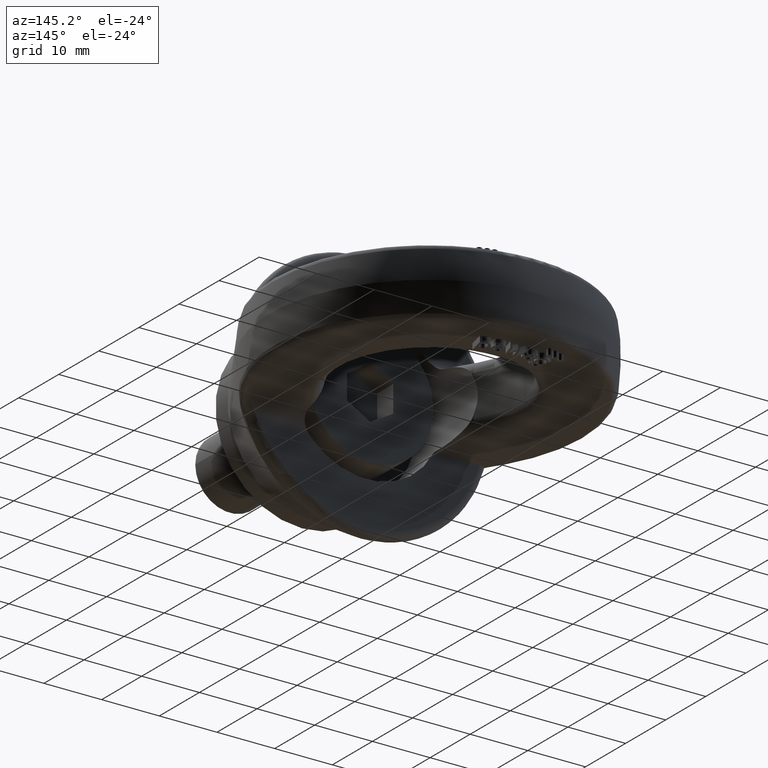
[diagram: clean part render]
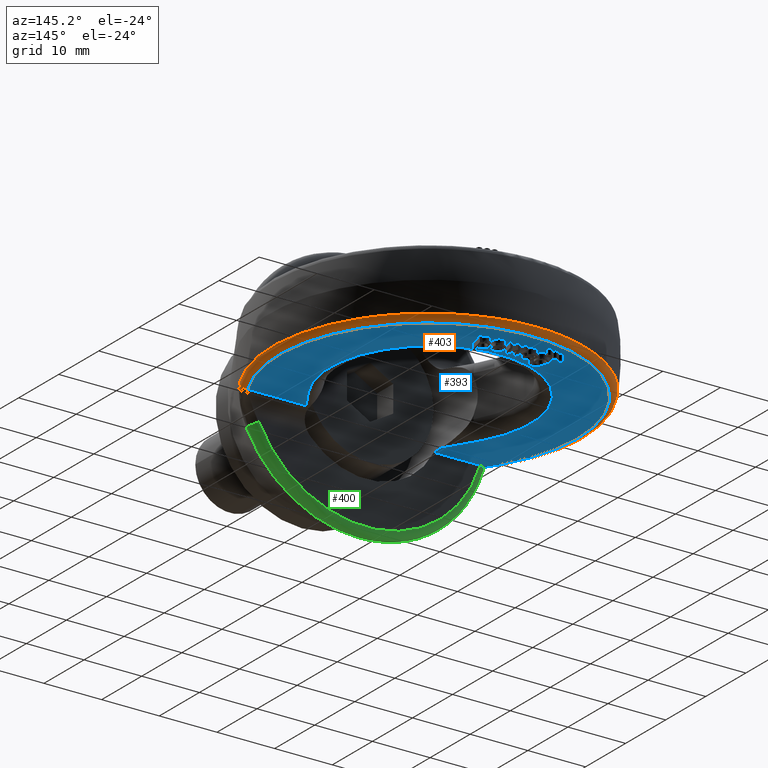
[diagram: same view with three faces highlighted in distinct colors, each labeled with its STEP entity id]
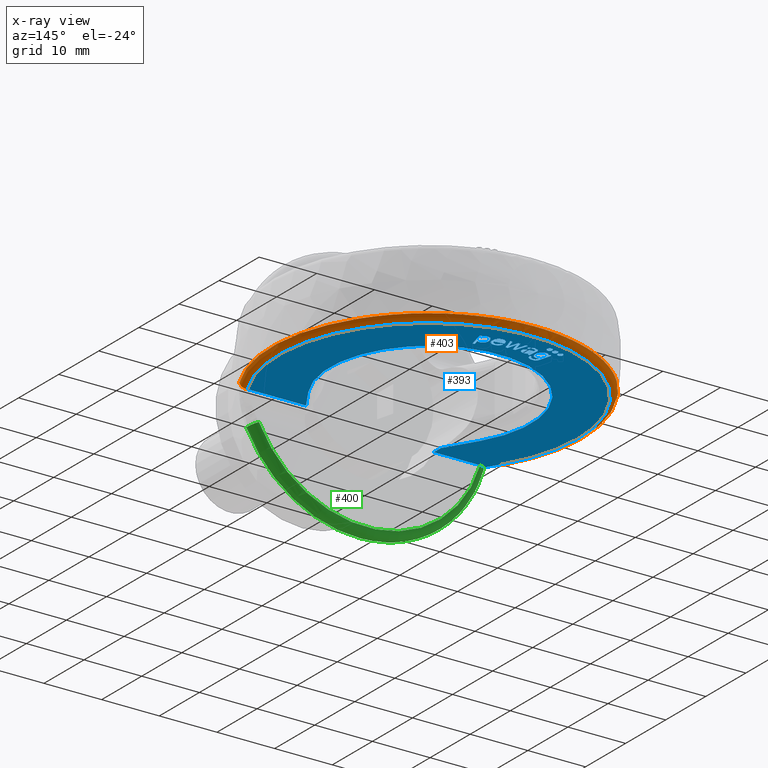
[diagram: x-ray of the same camera — body ghosted, the three highlighted faces saturated]
A machine part, auxiliary view with three faces highlighted in distinct colors.
The next image is the same camera in x-ray (body ghosted, the three faces saturated) — at least one of them is partly hidden behind the body in this view.
Their STEP definitions:

[orange] entity #403 — the highlighted toroidal blend (fillet) surface has major radius 25.8583 mm and minor (blend) radius 1.2 mm.
#110=TOROIDAL_SURFACE('',#3317,25.8582675367086,1.2);
#222=FACE_OUTER_BOUND('',#820,.T.);
#403=ADVANCED_FACE('',(#222),#110,.T.);
#583=CIRCLE('',#3212,27.0381124433265);
#607=CIRCLE('',#3302,25.8582675367086);
#610=CIRCLE('',#3314,1.2);
#612=CIRCLE('',#3316,1.2);
#820=EDGE_LOOP('',(#1910,#1911,#1912,#1913));
#1910=ORIENTED_EDGE('',*,*,#2823,.F.);
#1911=ORIENTED_EDGE('',*,*,#2584,.F.);
#1912=ORIENTED_EDGE('',*,*,#2825,.F.);
#1913=ORIENTED_EDGE('',*,*,#2795,.F.);
#2279=VERTEX_POINT('',#4270);
#2288=VERTEX_POINT('',#4315);
#2425=VERTEX_POINT('',#5593);
#2426=VERTEX_POINT('',#5595);
#2584=EDGE_CURVE('',#2288,#2279,#583,.T.);
#2795=EDGE_CURVE('',#2425,#2426,#607,.T.);
#2823=EDGE_CURVE('',#2279,#2425,#610,.T.);
#2825=EDGE_CURVE('',#2426,#2288,#612,.T.);
#3212=AXIS2_PLACEMENT_3D('',#4316,#3436,#3437);
#3302=AXIS2_PLACEMENT_3D('',#5594,#3739,#3740);
#3314=AXIS2_PLACEMENT_3D('',#5751,#3776,#3777);
#3316=AXIS2_PLACEMENT_3D('',#5783,#3780,#3781);
#3317=AXIS2_PLACEMENT_3D('',#5784,#3782,#3783);
#3436=DIRECTION('',(-2.34291072916505E-15,-1.14557210677714E-16,1.));
#3437=DIRECTION('',(-2.84920768552035E-31,1.,1.28316906708106E-16));
#3739=DIRECTION('',(2.34291072916505E-15,1.14557210677714E-16,-1.));
#3740=DIRECTION('',(-2.38336764568243E-31,1.,1.00628752884209E-16));
#3776=DIRECTION('',(0.521954634038309,-0.852973246946195,1.22289311222577E-15));
#3777=DIRECTION('',(0.852973246946194,0.521954634038309,2.16840434497101E-15));
#3780=DIRECTION('',(-0.483404388258223,-0.875397165526993,-1.13257332777566E-15));
#3781=DIRECTION('',(-0.875397165526993,0.483404388258223,-2.16840434497101E-15));
#3782=DIRECTION('',(-2.34291072916505E-15,-1.14557210677714E-16,1.));
#3783=DIRECTION('',(-2.84708537495894E-31,1.,1.28221326337571E-16));
#4270=CARTESIAN_POINT('',(-23.0627865620805,17.3873319145569,-5.01901140684417));
#4315=CARTESIAN_POINT('',(23.6690869940882,18.4296577946768,-5.01901140684406));
#4316=CARTESIAN_POINT('',(1.17590956748968E-14,31.5,-5.01901140684411));
#5593=CARTESIAN_POINT('',(-22.0564104211897,18.0031574310126,-6.00000000000006));
#5594=CARTESIAN_POINT('',(1.40574643749903E-14,31.5,-6.));
#5595=CARTESIAN_POINT('',(22.6362541070735,19.,-5.99999999999995));
#5751=CARTESIAN_POINT('',(-22.0564104211897,18.0031574310126,-4.80000000000006));
#5783=CARTESIAN_POINT('',(22.6362541070735,19.,-4.79999999999995));
#5784=CARTESIAN_POINT('',(1.12459714999922E-14,31.5,-4.80000000000001));

[blue] entity #393 — the highlighted planar face has unit normal (-0, -0, 1).
#393=ADVANCED_FACE('',(#658,#659,#660,#661,#662,#663,#664,#665,#666),#527,
 .F.);
#527=PLANE('',#3303);
#603=CIRCLE('',#3298,0.45);
#604=CIRCLE('',#3299,0.45);
#605=CIRCLE('',#3300,0.45);
#606=CIRCLE('',#3301,17.4);
#607=CIRCLE('',#3302,25.8582675367086);
#658=FACE_BOUND('',#802,.T.);
#659=FACE_BOUND('',#803,.T.);
#660=FACE_BOUND('',#804,.T.);
#661=FACE_BOUND('',#805,.T.);
#662=FACE_BOUND('',#806,.T.);
#663=FACE_BOUND('',#807,.T.);
#664=FACE_BOUND('',#808,.T.);
#665=FACE_BOUND('',#809,.T.);
#666=FACE_BOUND('',#810,.T.);
#802=EDGE_LOOP('',(#1819,#1820,#1821,#1822,#1823,#1824,#1825));
#803=EDGE_LOOP('',(#1826,#1827,#1828,#1829,#1830,#1831,#1832,#1833,#1834,
#1835,#1836,#1837,#1838,#1839,#1840));
#804=EDGE_LOOP('',(#1841,#1842,#1843,#1844,#1845));
#805=EDGE_LOOP('',(#1846));
#806=EDGE_LOOP('',(#1847));
#807=EDGE_LOOP('',(#1848));
#808=EDGE_LOOP('',(#1849,#1850,#1851,#1852,#1853,#1854,#1855,#1856,#1857));
#809=EDGE_LOOP('',(#1858,#1859,#1860,#1861,#1862,#1863));
#810=EDGE_LOOP('',(#1864,#1865,#1866,#1867,#1868,#1869,#1870,#1871,#1872));
#936=LINE('',#4390,#1130);
#1009=LINE('',#5441,#1231);
#1010=LINE('',#5473,#1232);
#1011=LINE('',#5475,#1233);
#1012=LINE('',#5476,#1234);
#1013=LINE('',#5479,#1235);
#1014=LINE('',#5481,#1236);
#1015=LINE('',#5483,#1237);
#1016=LINE('',#5497,#1238);
#1017=LINE('',#5499,#1239);
#1018=LINE('',#5515,#1240);
#1019=LINE('',#5517,#1241);
#1020=LINE('',#5519,#1242);
#1021=LINE('',#5521,#1243);
#1022=LINE('',#5523,#1244);
#1023=LINE('',#5539,#1245);
#1024=LINE('',#5562,#1246);
#1025=LINE('',#5572,#1247);
#1026=LINE('',#5573,#1248);
#1027=LINE('',#5596,#1249);
#1028=LINE('',#5598,#1250);
#1029=LINE('',#5599,#1251);
#1030=LINE('',#5602,#1252);
#1031=LINE('',#5604,#1253);
#1032=LINE('',#5606,#1254);
#1033=LINE('',#5608,#1255);
#1034=LINE('',#5632,#1256);
#1035=LINE('',#5677,#1257);
#1130=VECTOR('',#3472,1.);
#1231=VECTOR('',#3713,1.);
#1232=VECTOR('',#3714,1.);
#1233=VECTOR('',#3715,1.);
#1234=VECTOR('',#3716,1.);
#1235=VECTOR('',#3717,1.);
#1236=VECTOR('',#3718,1.);
#1237=VECTOR('',#3719,1.);
#1238=VECTOR('',#3720,1.);
#1239=VECTOR('',#3721,1.);
#1240=VECTOR('',#3722,1.);
#1241=VECTOR('',#3723,1.);
#1242=VECTOR('',#3724,1.);
#1243=VECTOR('',#3725,1.);
#1244=VECTOR('',#3726,1.);
#1245=VECTOR('',#3727,1.);
#1246=VECTOR('',#3728,1.);
#1247=VECTOR('',#3737,1.);
#1248=VECTOR('',#3738,1.);
#1249=VECTOR('',#3741,1.);
#1250=VECTOR('',#3742,1.);
#1251=VECTOR('',#3743,1.);
#1252=VECTOR('',#3744,1.);
#1253=VECTOR('',#3745,1.);
#1254=VECTOR('',#3746,1.);
#1255=VECTOR('',#3747,1.);
#1256=VECTOR('',#3748,1.);
#1257=VECTOR('',#3749,1.);
#1819=ORIENTED_EDGE('',*,*,#2760,.T.);
#1820=ORIENTED_EDGE('',*,*,#2761,.T.);
#1821=ORIENTED_EDGE('',*,*,#2762,.T.);
#1822=ORIENTED_EDGE('',*,*,#2763,.T.);
#1823=ORIENTED_EDGE('',*,*,#2764,.T.);
#1824=ORIENTED_EDGE('',*,*,#2765,.T.);
#1825=ORIENTED_EDGE('',*,*,#2766,.T.);
#1826=ORIENTED_EDGE('',*,*,#2767,.T.);
#1827=ORIENTED_EDGE('',*,*,#2768,.T.);
#1828=ORIENTED_EDGE('',*,*,#2769,.T.);
#1829=ORIENTED_EDGE('',*,*,#2770,.T.);
#1830=ORIENTED_EDGE('',*,*,#2771,.T.);
#1831=ORIENTED_EDGE('',*,*,#2772,.T.);
#1832=ORIENTED_EDGE('',*,*,#2773,.T.);
#1833=ORIENTED_EDGE('',*,*,#2774,.T.);
#1834=ORIENTED_EDGE('',*,*,#2775,.T.);
#1835=ORIENTED_EDGE('',*,*,#2776,.T.);
#1836=ORIENTED_EDGE('',*,*,#2777,.T.);
#1837=ORIENTED_EDGE('',*,*,#2778,.T.);
#1838=ORIENTED_EDGE('',*,*,#2779,.T.);
#1839=ORIENTED_EDGE('',*,*,#2780,.T.);
#1840=ORIENTED_EDGE('',*,*,#2781,.T.);
#1841=ORIENTED_EDGE('',*,*,#2782,.T.);
#1842=ORIENTED_EDGE('',*,*,#2783,.T.);
#1843=ORIENTED_EDGE('',*,*,#2784,.T.);
#1844=ORIENTED_EDGE('',*,*,#2785,.T.);
#1845=ORIENTED_EDGE('',*,*,#2786,.T.);
#1846=ORIENTED_EDGE('',*,*,#2787,.F.);
#1847=ORIENTED_EDGE('',*,*,#2788,.F.);
#1848=ORIENTED_EDGE('',*,*,#2789,.F.);
#1849=ORIENTED_EDGE('',*,*,#2790,.T.);
#1850=ORIENTED_EDGE('',*,*,#2791,.T.);
#1851=ORIENTED_EDGE('',*,*,#2604,.T.);
#1852=ORIENTED_EDGE('',*,*,#2792,.F.);
#1853=ORIENTED_EDGE('',*,*,#2793,.T.);
#1854=ORIENTED_EDGE('',*,*,#2794,.T.);
#1855=ORIENTED_EDGE('',*,*,#2795,.T.);
#1856=ORIENTED_EDGE('',*,*,#2796,.T.);
#1857=ORIENTED_EDGE('',*,*,#2797,.T.);
#1858=ORIENTED_EDGE('',*,*,#2798,.T.);
#1859=ORIENTED_EDGE('',*,*,#2799,.T.);
#1860=ORIENTED_EDGE('',*,*,#2800,.T.);
#1861=ORIENTED_EDGE('',*,*,#2801,.T.);
#1862=ORIENTED_EDGE('',*,*,#2802,.T.);
#1863=ORIENTED_EDGE('',*,*,#2803,.T.);
#1864=ORIENTED_EDGE('',*,*,#2804,.T.);
#1865=ORIENTED_EDGE('',*,*,#2805,.T.);
#1866=ORIENTED_EDGE('',*,*,#2806,.T.);
#1867=ORIENTED_EDGE('',*,*,#2807,.T.);
#1868=ORIENTED_EDGE('',*,*,#2808,.T.);
#1869=ORIENTED_EDGE('',*,*,#2809,.T.);
#1870=ORIENTED_EDGE('',*,*,#2810,.T.);
#1871=ORIENTED_EDGE('',*,*,#2811,.T.);
#1872=ORIENTED_EDGE('',*,*,#2812,.T.);
#2304=VERTEX_POINT('',#4389);
#2305=VERTEX_POINT('',#4391);
#2391=VERTEX_POINT('',#5434);
#2392=VERTEX_POINT('',#5435);
#2393=VERTEX_POINT('',#5440);
#2394=VERTEX_POINT('',#5442);
#2395=VERTEX_POINT('',#5455);
#2396=VERTEX_POINT('',#5472);
#2397=VERTEX_POINT('',#5474);
#2398=VERTEX_POINT('',#5477);
#2399=VERTEX_POINT('',#5478);
#2400=VERTEX_POINT('',#5480);
#2401=VERTEX_POINT('',#5482);
#2402=VERTEX_POINT('',#5484);
#2403=VERTEX_POINT('',#5491);
#2404=VERTEX_POINT('',#5496);
#2405=VERTEX_POINT('',#5498);
#2406=VERTEX_POINT('',#5500);
#2407=VERTEX_POINT('',#5507);
#2408=VERTEX_POINT('',#5514);
#2409=VERTEX_POINT('',#5516);
#2410=VERTEX_POINT('',#5518);
#2411=VERTEX_POINT('',#5520);
#2412=VERTEX_POINT('',#5522);
#2413=VERTEX_POINT('',#5532);
#2414=VERTEX_POINT('',#5533);
#2415=VERTEX_POINT('',#5538);
#2416=VERTEX_POINT('',#5540);
#2417=VERTEX_POINT('',#5561);
#2418=VERTEX_POINT('',#5564);
#2419=VERTEX_POINT('',#5566);
#2420=VERTEX_POINT('',#5568);
#2421=VERTEX_POINT('',#5570);
#2422=VERTEX_POINT('',#5571);
#2423=VERTEX_POINT('',#5574);
#2424=VERTEX_POINT('',#5585);
#2425=VERTEX_POINT('',#5593);
#2426=VERTEX_POINT('',#5595);
#2427=VERTEX_POINT('',#5597);
#2428=VERTEX_POINT('',#5600);
#2429=VERTEX_POINT('',#5601);
#2430=VERTEX_POINT('',#5603);
#2431=VERTEX_POINT('',#5605);
#2432=VERTEX_POINT('',#5607);
#2433=VERTEX_POINT('',#5609);
#2434=VERTEX_POINT('',#5633);
#2435=VERTEX_POINT('',#5634);
#2436=VERTEX_POINT('',#5639);
#2437=VERTEX_POINT('',#5656);
#2438=VERTEX_POINT('',#5663);
#2439=VERTEX_POINT('',#5676);
#2440=VERTEX_POINT('',#5678);
#2441=VERTEX_POINT('',#5683);
#2442=VERTEX_POINT('',#5696);
#2604=EDGE_CURVE('',#2305,#2304,#936,.T.);
#2760=EDGE_CURVE('',#2391,#2392,#3079,.T.);
#2761=EDGE_CURVE('',#2392,#2393,#3080,.T.);
#2762=EDGE_CURVE('',#2393,#2394,#1009,.T.);
#2763=EDGE_CURVE('',#2394,#2395,#3081,.T.);
#2764=EDGE_CURVE('',#2395,#2396,#3082,.T.);
#2765=EDGE_CURVE('',#2396,#2397,#1010,.T.);
#2766=EDGE_CURVE('',#2397,#2391,#1011,.T.);
#2767=EDGE_CURVE('',#2398,#2399,#1012,.T.);
#2768=EDGE_CURVE('',#2399,#2400,#1013,.T.);
#2769=EDGE_CURVE('',#2400,#2401,#1014,.T.);
#2770=EDGE_CURVE('',#2401,#2402,#1015,.T.);
#2771=EDGE_CURVE('',#2402,#2403,#3083,.T.);
#2772=EDGE_CURVE('',#2403,#2404,#3084,.T.);
#2773=EDGE_CURVE('',#2404,#2405,#1016,.T.);
#2774=EDGE_CURVE('',#2405,#2406,#1017,.T.);
#2775=EDGE_CURVE('',#2406,#2407,#3085,.T.);
#2776=EDGE_CURVE('',#2407,#2408,#3086,.T.);
#2777=EDGE_CURVE('',#2408,#2409,#1018,.T.);
#2778=EDGE_CURVE('',#2409,#2410,#1019,.T.);
#2779=EDGE_CURVE('',#2410,#2411,#1020,.T.);
#2780=EDGE_CURVE('',#2411,#2412,#1021,.T.);
#2781=EDGE_CURVE('',#2412,#2398,#1022,.T.);
#2782=EDGE_CURVE('',#2413,#2414,#3087,.T.);
#2783=EDGE_CURVE('',#2414,#2415,#3088,.T.);
#2784=EDGE_CURVE('',#2415,#2416,#1023,.T.);
#2785=EDGE_CURVE('',#2416,#2417,#3089,.T.);
#2786=EDGE_CURVE('',#2417,#2413,#1024,.T.);
#2787=EDGE_CURVE('',#2418,#2418,#603,.T.);
#2788=EDGE_CURVE('',#2419,#2419,#604,.T.);
#2789=EDGE_CURVE('',#2420,#2420,#605,.T.);
#2790=EDGE_CURVE('',#2421,#2422,#606,.T.);
#2791=EDGE_CURVE('',#2422,#2305,#1025,.T.);
#2792=EDGE_CURVE('',#2423,#2304,#1026,.T.);
#2793=EDGE_CURVE('',#2423,#2424,#3090,.T.);
#2794=EDGE_CURVE('',#2424,#2425,#3091,.T.);
#2795=EDGE_CURVE('',#2425,#2426,#607,.T.);
#2796=EDGE_CURVE('',#2426,#2427,#1027,.T.);
#2797=EDGE_CURVE('',#2427,#2421,#1028,.T.);
#2798=EDGE_CURVE('',#2428,#2429,#1029,.T.);
#2799=EDGE_CURVE('',#2429,#2430,#1030,.T.);
#2800=EDGE_CURVE('',#2430,#2431,#1031,.T.);
#2801=EDGE_CURVE('',#2431,#2432,#1032,.T.);
#2802=EDGE_CURVE('',#2432,#2433,#1033,.T.);
#2803=EDGE_CURVE('',#2433,#2428,#3092,.T.);
#2804=EDGE_CURVE('',#2434,#2435,#1034,.T.);
#2805=EDGE_CURVE('',#2435,#2436,#3093,.T.);
#2806=EDGE_CURVE('',#2436,#2437,#3094,.T.);
#2807=EDGE_CURVE('',#2437,#2438,#3095,.T.);
#2808=EDGE_CURVE('',#2438,#2439,#3096,.T.);
#2809=EDGE_CURVE('',#2439,#2440,#1035,.T.);
#2810=EDGE_CURVE('',#2440,#2441,#3097,.T.);
#2811=EDGE_CURVE('',#2441,#2442,#3098,.T.);
#2812=EDGE_CURVE('',#2442,#2434,#3099,.T.);
#3079=B_SPLINE_CURVE_WITH_KNOTS('',3,(#5422,#5423,#5424,#5425,#5426,#5427,
#5428,#5429,#5430,#5431,#5432,#5433),.UNSPECIFIED.,.F.,.F.,(4,2,2,2,2,4),
(0.,0.305645754892086,0.470829306249209,0.636012857606332,0.802206343843955,
1.),.UNSPECIFIED.);
#3080=B_SPLINE_CURVE_WITH_KNOTS('',3,(#5436,#5437,#5438,#5439),
 .UNSPECIFIED.,.F.,.F.,(4,4),(0.,1.),.UNSPECIFIED.);
#3081=B_SPLINE_CURVE_WITH_KNOTS('',3,(#5443,#5444,#5445,#5446,#5447,#5448,
#5449,#5450,#5451,#5452,#5453,#5454),.UNSPECIFIED.,.F.,.F.,(4,2,2,2,2,4),
(0.,0.16330465130929,0.382303784248535,0.619375661168201,0.856447538087869,
1.),.UNSPECIFIED.);
#3082=B_SPLINE_CURVE_WITH_KNOTS('',3,(#5456,#5457,#5458,#5459,#5460,#5461,
#5462,#5463,#5464,#5465,#5466,#5467,#5468,#5469,#5470,#5471),
 .UNSPECIFIED.,.F.,.F.,(4,2,2,2,2,2,2,4),(0.,0.139503666745452,0.312880428291713,
0.486257189837976,0.605370995480445,0.723854105689066,0.842337215897688,
1.),.UNSPECIFIED.);
#3083=B_SPLINE_CURVE_WITH_KNOTS('',3,(#5485,#5486,#5487,#5488,#5489,#5490),
 .UNSPECIFIED.,.F.,.F.,(4,2,4),(0.,0.728909607654959,1.),.UNSPECIFIED.);
#3084=B_SPLINE_CURVE_WITH_KNOTS('',3,(#5492,#5493,#5494,#5495),
 .UNSPECIFIED.,.F.,.F.,(4,4),(0.,1.),.UNSPECIFIED.);
#3085=B_SPLINE_CURVE_WITH_KNOTS('',3,(#5501,#5502,#5503,#5504,#5505,#5506),
 .UNSPECIFIED.,.F.,.F.,(4,2,4),(0.,0.752082276025114,1.),.UNSPECIFIED.);
#3086=B_SPLINE_CURVE_WITH_KNOTS('',3,(#5508,#5509,#5510,#5511,#5512,#5513),
 .UNSPECIFIED.,.F.,.F.,(4,2,4),(0.,0.250451922487267,1.),.UNSPECIFIED.);
#3087=B_SPLINE_CURVE_WITH_KNOTS('',3,(#5524,#5525,#5526,#5527,#5528,#5529,
#5530,#5531),.UNSPECIFIED.,.F.,.F.,(4,2,2,4),(0.,0.36347796861321,0.72808767591244,
1.),.UNSPECIFIED.);
#3088=B_SPLINE_CURVE_WITH_KNOTS('',3,(#5534,#5535,#5536,#5537),
 .UNSPECIFIED.,.F.,.F.,(4,4),(0.,1.),.UNSPECIFIED.);
#3089=B_SPLINE_CURVE_WITH_KNOTS('',3,(#5541,#5542,#5543,#5544,#5545,#5546,
#5547,#5548,#5549,#5550,#5551,#5552,#5553,#5554,#5555,#5556,#5557,#5558,
#5559,#5560),.UNSPECIFIED.,.F.,.F.,(4,2,2,2,2,2,2,2,2,4),(0.,0.10292120312204,
0.206156274885326,0.336063021724233,0.465707475917735,0.599570296299742,
0.733433116681749,0.86284525505617,0.992257393430589,1.),.UNSPECIFIED.);
#3090=B_SPLINE_CURVE_WITH_KNOTS('',3,(#5575,#5576,#5577,#5578,#5579,#5580,
#5581,#5582,#5583,#5584),.UNSPECIFIED.,.F.,.F.,(4,3,3,4),(0.,0.463311425713852,
0.927293740386998,1.),.UNSPECIFIED.);
#3091=B_SPLINE_CURVE_WITH_KNOTS('',3,(#5586,#5587,#5588,#5589,#5590,#5591,
#5592),.UNSPECIFIED.,.F.,.F.,(4,3,4),(0.,0.140934782640882,1.),
 .UNSPECIFIED.);
#3092=B_SPLINE_CURVE_WITH_KNOTS('',3,(#5610,#5611,#5612,#5613,#5614,#5615,
#5616,#5617,#5618,#5619,#5620,#5621,#5622,#5623,#5624,#5625,#5626,#5627,
#5628,#5629,#5630,#5631),.UNSPECIFIED.,.F.,.F.,(4,2,2,2,2,2,2,2,2,2,4),
(0.,0.0830854503763809,0.165678296755064,0.273272220956485,0.380460889370507,
0.487248686046667,0.601946689884027,0.717055250849187,0.831909514623418,
0.915821305508702,1.),.UNSPECIFIED.);
#3093=B_SPLINE_CURVE_WITH_KNOTS('',3,(#5635,#5636,#5637,#5638),
 .UNSPECIFIED.,.F.,.F.,(4,4),(0.,1.),.UNSPECIFIED.);
#3094=B_SPLINE_CURVE_WITH_KNOTS('',3,(#5640,#5641,#5642,#5643,#5644,#5645,
#5646,#5647,#5648,#5649,#5650,#5651,#5652,#5653,#5654,#5655),
 .UNSPECIFIED.,.F.,.F.,(4,2,2,2,2,2,2,4),(0.,0.121639465164562,0.243930904991188,
0.445161792748228,0.646392680505269,0.76356509616127,0.881519242448368,
1.),.UNSPECIFIED.);
#3095=B_SPLINE_CURVE_WITH_KNOTS('',3,(#5657,#5658,#5659,#5660,#5661,#5662),
 .UNSPECIFIED.,.F.,.F.,(4,2,4),(0.,0.3293446934494,1.),.UNSPECIFIED.);
#3096=B_SPLINE_CURVE_WITH_KNOTS('',3,(#5664,#5665,#5666,#5667,#5668,#5669,
#5670,#5671,#5672,#5673,#5674,#5675),.UNSPECIFIED.,.F.,.F.,(4,2,2,2,2,4),
(0.,0.0173977322142899,0.217983350684955,0.490675035316423,0.745337517658205,
1.),.UNSPECIFIED.);
#3097=B_SPLINE_CURVE_WITH_KNOTS('',3,(#5679,#5680,#5681,#5682),
 .UNSPECIFIED.,.F.,.F.,(4,4),(0.,1.),.UNSPECIFIED.);
#3098=B_SPLINE_CURVE_WITH_KNOTS('',3,(#5684,#5685,#5686,#5687,#5688,#5689,
#5690,#5691,#5692,#5693,#5694,#5695),.UNSPECIFIED.,.F.,.F.,(4,2,2,2,2,4),
(0.,0.201730292707491,0.402155128097313,0.601755169925863,0.80019954507805,
1.),.UNSPECIFIED.);
#3099=B_SPLINE_CURVE_WITH_KNOTS('',3,(#5697,#5698,#5699,#5700,#5701,#5702,
#5703,#5704,#5705,#5706),.UNSPECIFIED.,.F.,.F.,(4,2,2,2,4),(0.,0.161403604805118,
0.32305979741118,0.661780038481079,1.),.UNSPECIFIED.);
#3298=AXIS2_PLACEMENT_3D('',#5563,#3729,#3730);
#3299=AXIS2_PLACEMENT_3D('',#5565,#3731,#3732);
#3300=AXIS2_PLACEMENT_3D('',#5567,#3733,#3734);
#3301=AXIS2_PLACEMENT_3D('',#5569,#3735,#3736);
#3302=AXIS2_PLACEMENT_3D('',#5594,#3739,#3740);
#3303=AXIS2_PLACEMENT_3D('',#5707,#3750,#3751);
#3472=DIRECTION('',(0.,-1.,0.));
#3713=DIRECTION('',(-0.926036898244061,-0.377432991523685,-2.21285945522543E-15));
#3714=DIRECTION('',(-0.240441711768687,0.970663578816958,-4.52136954145948E-16));
#3715=DIRECTION('',(-0.970663578816969,-0.240441711768639,-2.30172244505081E-15));
#3716=DIRECTION('',(0.258675883018076,-0.965964175083537,4.95396340187125E-16));
#3717=DIRECTION('',(0.999999995678886,9.29635860053068E-5,2.34292136869017E-15));
#3718=DIRECTION('',(0.297319028478967,0.954778191678216,8.05968668262868E-16));
#3719=DIRECTION('',(-0.999999995678886,-9.29635860091688E-5,-2.34292136869017E-15));
#3720=DIRECTION('',(-0.266687759387679,0.963782983348834,-5.14417322535292E-16));
#3721=DIRECTION('',(-0.999999995678886,-9.29635860511763E-5,-2.34292136869018E-15));
#3722=DIRECTION('',(-0.999999995678886,-9.29635860255876E-5,-2.34292136869017E-15));
#3723=DIRECTION('',(0.303109223404765,-0.952955822001713,6.00989890756305E-16));
#3724=DIRECTION('',(0.999999995678886,9.29635860032808E-5,2.34292136869017E-15));
#3725=DIRECTION('',(0.260553429481471,0.965459429694197,7.2105376474115E-16));
#3726=DIRECTION('',(0.226101851815538,0.974103666251998,6.41327053419473E-16));
#3727=DIRECTION('',(-0.99995564898741,0.0094180708305311,-2.34172791077749E-15));
#3728=DIRECTION('',(0.991600377783164,-0.129339440157618,2.30841439865722E-15));
#3729=DIRECTION('',(2.34291072916505E-15,1.14557210677714E-16,-1.));
#3730=DIRECTION('',(0.,0.999999999999997,0.));
#3731=DIRECTION('',(2.34291072916505E-15,1.14557210677714E-16,-1.));
#3732=DIRECTION('',(0.,0.999999999999997,0.));
#3733=DIRECTION('',(2.34291072916505E-15,1.14557210677714E-16,-1.));
#3734=DIRECTION('',(0.,0.999999999999997,0.));
#3735=DIRECTION('',(-2.34291072916505E-15,-1.14557210677714E-16,1.));
#3736=DIRECTION('',(-3.54194012760871E-31,1.,9.969675149292E-17));
#3737=DIRECTION('',(0.51318793037975,-0.858276265611807,1.10403177318535E-15));
#3738=DIRECTION('',(1.,0.,2.34291072916505E-15));
#3739=DIRECTION('',(2.34291072916505E-15,1.14557210677714E-16,-1.));
#3740=DIRECTION('',(-2.38336764568243E-31,1.,1.00628752884209E-16));
#3741=DIRECTION('',(-1.,4.38613491528481E-16,-2.34291072916505E-15));
#3742=DIRECTION('',(0.513187930379751,0.858276265611807,1.3006752431441E-15));
#3743=DIRECTION('',(-0.240261234879321,-0.970708266686889,-6.74112256414654E-16));
#3744=DIRECTION('',(0.970708266686887,-0.240261234879326,2.24675915600816E-15));
#3745=DIRECTION('',(0.24026123487932,0.970708266686889,6.74112256414651E-16));
#3746=DIRECTION('',(-0.970708266686893,0.240261234879303,-2.24675915600817E-15));
#3747=DIRECTION('',(-0.240261234879329,-0.970708266686887,-6.74112256414672E-16));
#3748=DIRECTION('',(0.991576312927648,0.129523803375332,2.33801266797515E-15));
#3749=DIRECTION('',(0.965560779386236,0.260177595713091,2.2920279293307E-15));
#3750=DIRECTION('',(-2.34291072916505E-15,-1.14557210677714E-16,1.));
#3751=DIRECTION('',(0.,1.,1.14491749414469E-16));
#4389=CARTESIAN_POINT('',(-11.7594659426143,16.,-6.00000000000003));
#4390=CARTESIAN_POINT('',(-11.7594659426143,8.75,-6.00000000000003));
#4391=CARTESIAN_POINT('',(-11.7594659426143,17.7612990239723,-6.00000000000003));
#5422=CARTESIAN_POINT('',(-6.20575754336815,53.3063757401385,-6.00000000000001));
#5423=CARTESIAN_POINT('',(-6.055181613358,52.6985004674489,-6.00000000000001));
#5424=CARTESIAN_POINT('',(-5.90460568334784,52.0906251947592,-6.00000000000001));
#5425=CARTESIAN_POINT('',(-5.67265232057483,51.1542290945498,-6.00000000000001));
#5426=CARTESIAN_POINT('',(-5.58096982404648,50.9302553745607,-6.00000000000001));
#5427=CARTESIAN_POINT('',(-5.37662564480679,50.6899122592701,-6.00000000000001));
#5428=CARTESIAN_POINT('',(-5.24205042436208,50.6078121137664,-6.00000000000001));
#5429=CARTESIAN_POINT('',(-4.90781318724152,50.5224743446232,-6.00000000000001));
#5430=CARTESIAN_POINT('',(-4.71619275367269,50.5277574319655,-6.00000000000001));
#5431=CARTESIAN_POINT('',(-4.24472578209139,50.6445438532996,-6.00000000000001));
#5432=CARTESIAN_POINT('',(-4.05181997350078,50.7524180364342,-6.00000000000001));
#5433=CARTESIAN_POINT('',(-3.92220745020135,50.904703685001,-6.00000000000001));
#5434=CARTESIAN_POINT('',(-6.20575754336815,53.3063757401385,-6.00000000000001));
#5435=CARTESIAN_POINT('',(-3.92220745020135,50.904703685001,-6.00000000000001));
#5436=CARTESIAN_POINT('',(-3.92220745020135,50.904703685001,-6.00000000000001));
#5437=CARTESIAN_POINT('',(-3.79259492690193,51.0569893335678,-6.00000000000001));
#5438=CARTESIAN_POINT('',(-3.75905359406855,51.2463577334012,-6.00000000000001));
#5439=CARTESIAN_POINT('',(-3.82064093689037,51.4722516988339,-6.00000000000001));
#5440=CARTESIAN_POINT('',(-3.82064093689037,51.4722516988339,-6.00000000000001));
#5441=CARTESIAN_POINT('',(-41.5829666251604,36.0811289709585,-6.0000000000001));
#5442=CARTESIAN_POINT('',(-4.16188763482526,51.3331667851621,-6.00000000000001));
#5443=CARTESIAN_POINT('',(-4.16188763482526,51.3331667851621,-6.00000000000001));
#5444=CARTESIAN_POINT('',(-4.14971713609459,51.2223272473401,-6.00000000000001));
#5445=CARTESIAN_POINT('',(-4.17127277304764,51.1339689886218,-6.00000000000001));
#5446=CARTESIAN_POINT('',(-4.30068997402485,50.9797479153108,-6.00000000000001));
#5447=CARTESIAN_POINT('',(-4.41576405205715,50.9160661145281,-6.00000000000001));
#5448=CARTESIAN_POINT('',(-4.74093982506098,50.8355172805211,-6.00000000000001));
#5449=CARTESIAN_POINT('',(-4.87867463331528,50.8361879908635,-6.00000000000001));
#5450=CARTESIAN_POINT('',(-5.09495334067749,50.923350430372,-6.00000000000001));
#5451=CARTESIAN_POINT('',(-5.1801743161849,51.0010722981359,-6.00000000000001));
#5452=CARTESIAN_POINT('',(-5.27868933679548,51.1797755599088,-6.00000000000001));
#5453=CARTESIAN_POINT('',(-5.32549224742332,51.3311489177058,-6.00000000000001));
#5454=CARTESIAN_POINT('',(-5.38173395548936,51.5646922803139,-6.00000000000001));
#5455=CARTESIAN_POINT('',(-5.38173395548936,51.5646922803139,-6.00000000000001));
#5456=CARTESIAN_POINT('',(-5.38173395548936,51.5646922803139,-6.00000000000001));
#5457=CARTESIAN_POINT('',(-5.17679373082309,51.4193753730725,-6.00000000000001));
#5458=CARTESIAN_POINT('',(-4.95626241217819,51.3767523497323,-6.00000000000001));
#5459=CARTESIAN_POINT('',(-4.4241566018083,51.5085595326528,-6.00000000000001));
#5460=CARTESIAN_POINT('',(-4.22107909102036,51.6695552338382,-6.00000000000001));
#5461=CARTESIAN_POINT('',(-4.00188275567909,52.1681999844469,-6.00000000000001));
#5462=CARTESIAN_POINT('',(-3.98296469165894,52.439336781128,-6.00000000000001));
#5463=CARTESIAN_POINT('',(-4.10530763479219,52.9332354401884,-6.00000000000001));
#5464=CARTESIAN_POINT('',(-4.18839672572242,53.1095265753095,-6.00000000000001));
#5465=CARTESIAN_POINT('',(-4.42085924575847,53.4131047639506,-6.00000000000001));
#5466=CARTESIAN_POINT('',(-4.56082942679883,53.5185468657608,-6.00000000000001));
#5467=CARTESIAN_POINT('',(-4.888563300012,53.6334467307898,-6.00000000000001));
#5468=CARTESIAN_POINT('',(-5.06542948324846,53.6394467022555,-6.00000000000001));
#5469=CARTESIAN_POINT('',(-5.50885099189004,53.5296073831551,-6.00000000000001));
#5470=CARTESIAN_POINT('',(-5.69238554121678,53.3774059149407,-6.00000000000001));
#5471=CARTESIAN_POINT('',(-5.80686094408678,53.1347819534282,-6.00000000000002));
#5472=CARTESIAN_POINT('',(-5.80686094408678,53.1347819534282,-6.00000000000002));
#5473=CARTESIAN_POINT('',(-12.3535770690589,79.5638855254303,-6.00000000000003));
#5474=CARTESIAN_POINT('',(-5.86996997357633,53.3895532074231,-6.00000000000002));
#5475=CARTESIAN_POINT('',(-48.5163929045193,42.8256676819946,-6.00000000000012));
#5476=CARTESIAN_POINT('',(-7.5013272258787,81.7196861322211,-6.00000000000002));
#5477=CARTESIAN_POINT('',(0.00969874891858655,53.6715282400953,-6.));
#5478=CARTESIAN_POINT('',(0.457306471073116,52.0000425992719,-6.));
#5479=CARTESIAN_POINT('',(-54.9984191437302,51.994887236132,-6.00000000000013));
#5480=CARTESIAN_POINT('',(0.848534425392201,52.0000789692257,-6.));
#5481=CARTESIAN_POINT('',(0.737432804766285,51.6432992334099,-6.));
#5482=CARTESIAN_POINT('',(1.52536757645238,54.1735877935451,-6.));
#5483=CARTESIAN_POINT('',(-54.9986211950544,54.1683331208306,-6.00000000000013));
#5484=CARTESIAN_POINT('',(1.13804409273528,54.1735517865649,-6.));
#5485=CARTESIAN_POINT('',(1.13804409273528,54.1735517865649,-6.));
#5486=CARTESIAN_POINT('',(1.02068856010015,53.7552753339072,-6.));
#5487=CARTESIAN_POINT('',(0.903333027465016,53.3369988812496,-6.));
#5488=CARTESIAN_POINT('',(0.742331537839043,52.7631603033725,-6.));
#5489=CARTESIAN_POINT('',(0.698546272178995,52.6076372975369,-6.));
#5490=CARTESIAN_POINT('',(0.65483066085355,52.4520947320095,-6.));
#5491=CARTESIAN_POINT('',(0.65483066085355,52.4520947320095,-6.));
#5492=CARTESIAN_POINT('',(0.65483066085355,52.4520947320095,-6.));
#5493=CARTESIAN_POINT('',(0.649362261636569,52.4751180149979,-6.));
#5494=CARTESIAN_POINT('',(0.611084537304806,52.6247691003413,-6.));
#5495=CARTESIAN_POINT('',(0.540778453324464,52.9002806009293,-6.));
#5496=CARTESIAN_POINT('',(0.540778453324464,52.9002806009293,-6.));
#5497=CARTESIAN_POINT('',(-7.54750962212468,82.130547597208,-6.00000000000002));
#5498=CARTESIAN_POINT('',(0.188476842332057,54.1734635113878,-6.));
#5499=CARTESIAN_POINT('',(-54.9986211950538,54.1683331208283,-6.00000000000013));
#5500=CARTESIAN_POINT('',(-0.196503959023854,54.1734277221918,-6.));
#5501=CARTESIAN_POINT('',(-0.196503959023854,54.1734277221918,-6.));
#5502=CARTESIAN_POINT('',(-0.306831254319925,53.7531053636731,-6.));
#5503=CARTESIAN_POINT('',(-0.417158549615995,53.3327830051544,-6.));
#5504=CARTESIAN_POINT('',(-0.563854328539506,52.773904845254,-6.));
#5505=CARTESIAN_POINT('',(-0.60138475625543,52.6356566407148,-6.));
#5506=CARTESIAN_POINT('',(-0.638334211927112,52.4972546377543,-6.));
#5507=CARTESIAN_POINT('',(-0.638334211927112,52.4972546377543,-6.));
#5508=CARTESIAN_POINT('',(-0.638334211927112,52.4972546377543,-6.));
#5509=CARTESIAN_POINT('',(-0.680515503147312,52.6371842038601,-6.));
#5510=CARTESIAN_POINT('',(-0.722696794367511,52.7771137699659,-6.));
#5511=CARTESIAN_POINT('',(-0.891117506819195,53.3358220630235,-6.));
#5512=CARTESIAN_POINT('',(-1.01744504657316,53.7545742218898,-6.));
#5513=CARTESIAN_POINT('',(-1.14372852706588,54.1733396647988,-6.));
#5514=CARTESIAN_POINT('',(-1.14372852706588,54.1733396647988,-6.));
#5515=CARTESIAN_POINT('',(-54.9986211950542,54.1683331208297,-6.00000000000013));
#5516=CARTESIAN_POINT('',(-1.50840608129146,54.1733057630654,-6.00000000000001));
#5517=CARTESIAN_POINT('',(-10.7056432107963,83.0888252924331,-6.00000000000002));
#5518=CARTESIAN_POINT('',(-0.817112733415423,51.9999241246921,-6.));
#5519=CARTESIAN_POINT('',(-54.9984191437302,51.9948872361321,-6.00000000000013));
#5520=CARTESIAN_POINT('',(-0.427446567337127,51.9999603494564,-6.));
#5521=CARTESIAN_POINT('',(0.144151021319497,54.1179684795249,-6.));
#5522=CARTESIAN_POINT('',(-0.0761652156463344,53.3016046768427,-6.));
#5523=CARTESIAN_POINT('',(0.573534766695659,56.100675669324,-6.));
#5524=CARTESIAN_POINT('',(3.35202607716548,52.7329249638483,-5.99999999999999));
#5525=CARTESIAN_POINT('',(3.30721731521264,52.4980678234778,-5.99999999999999));
#5526=CARTESIAN_POINT('',(3.21545129474866,52.3258346853053,-5.99999999999999));
#5527=CARTESIAN_POINT('',(2.93757280277487,52.1062751302244,-5.99999999999999));
#5528=CARTESIAN_POINT('',(2.77644761183765,52.0634503873468,-5.99999999999999));
#5529=CARTESIAN_POINT('',(2.45742162968368,52.1050625557687,-5.99999999999999));
#5530=CARTESIAN_POINT('',(2.34583748267766,52.1552192305778,-5.99999999999999));
#5531=CARTESIAN_POINT('',(2.25817779759024,52.2378575086575,-5.99999999999999));
#5532=CARTESIAN_POINT('',(3.35202607716548,52.7329249638483,-5.99999999999999));
#5533=CARTESIAN_POINT('',(2.25817779759024,52.2378575086575,-5.99999999999999));
#5534=CARTESIAN_POINT('',(2.25817779759024,52.2378575086575,-5.99999999999999));
#5535=CARTESIAN_POINT('',(2.17139171021997,52.3211557996652,-5.99999999999999));
#5536=CARTESIAN_POINT('',(2.1093241872405,52.4430238006375,-5.99999999999999));
#5537=CARTESIAN_POINT('',(2.072948089178,52.6048825378392,-5.99999999999999));
#5538=CARTESIAN_POINT('',(2.072948089178,52.6048825378392,-6.));
#5539=CARTESIAN_POINT('',(-55.1493411554615,53.1438300138966,-6.00000000000013));
#5540=CARTESIAN_POINT('',(1.68282294338979,52.6085569270579,-5.99999999999999));
#5541=CARTESIAN_POINT('',(1.68282294338979,52.6085569270579,-5.99999999999999));
#5542=CARTESIAN_POINT('',(1.71520918651609,52.3798840271064,-5.99999999999999));
#5543=CARTESIAN_POINT('',(1.8051536161662,52.1940109670633,-5.99999999999999));
#5544=CARTESIAN_POINT('',(2.10060867269327,51.907428210507,-5.99999999999999));
#5545=CARTESIAN_POINT('',(2.3020625838983,51.8196123490717,-5.99999999999999));
#5546=CARTESIAN_POINT('',(2.87739342064683,51.74456904534,-5.99999999999999));
#5547=CARTESIAN_POINT('',(3.14398164726296,51.8080896050236,-5.99999999999999));
#5548=CARTESIAN_POINT('',(3.57069974563825,52.1482984325685,-5.99999999999999));
#5549=CARTESIAN_POINT('',(3.70016305473675,52.4073419331851,-5.99999999999999));
#5550=CARTESIAN_POINT('',(3.79317230679177,53.1204114297183,-5.99999999999999));
#5551=CARTESIAN_POINT('',(3.73465635242916,53.4144094145965,-5.99999999999999));
#5552=CARTESIAN_POINT('',(3.40744448498658,53.8641926300338,-5.99999999999999));
#5553=CARTESIAN_POINT('',(3.17353434008081,53.9968655208889,-5.99999999999999));
#5554=CARTESIAN_POINT('',(2.57807079572062,54.0745348352492,-5.99999999999999));
#5555=CARTESIAN_POINT('',(2.32522207183297,54.0076742415339,-5.99999999999999));
#5556=CARTESIAN_POINT('',(1.90232170646932,53.6634715559914,-5.99999999999999));
#5557=CARTESIAN_POINT('',(1.77346838062593,53.4001047771434,-5.99999999999999));
#5558=CARTESIAN_POINT('',(1.72423402735027,53.0226421621162,-5.99999999999999));
#5559=CARTESIAN_POINT('',(1.7207400614704,52.9898175882272,-5.99999999999999));
#5560=CARTESIAN_POINT('',(1.71663075117234,52.946237827215,-5.99999999999999));
#5561=CARTESIAN_POINT('',(1.71663075117234,52.946237827215,-6.));
#5562=CARTESIAN_POINT('',(-56.1101487875991,60.4888764336901,-6.00000000000013));
#5563=CARTESIAN_POINT('',(-4.78698557238325,54.9051253899601,-6.00000000000001));
#5564=CARTESIAN_POINT('',(-4.78698557238325,55.3551253899601,-6.00000000000001));
#5565=CARTESIAN_POINT('',(-5.92590016139336,54.6372195129437,-6.00000000000002));
#5566=CARTESIAN_POINT('',(-5.92590016139336,55.0872195129437,-6.00000000000002));
#5567=CARTESIAN_POINT('',(-7.04999999999999,54.3127205871449,-6.00000000000002));
#5568=CARTESIAN_POINT('',(-7.04999999999999,54.7627205871449,-6.00000000000002));
#5569=CARTESIAN_POINT('',(1.40574643749903E-14,32.,-6.));
#5570=CARTESIAN_POINT('',(14.9340070216455,23.0705300113923,-5.99999999999997));
#5571=CARTESIAN_POINT('',(-14.9340070216454,23.0705300113923,-6.00000000000004));
#5572=CARTESIAN_POINT('',(-13.8193289800826,21.2062973390377,-6.00000000000004));
#5573=CARTESIAN_POINT('',(-55.,16.,-6.00000000000014));
#5574=CARTESIAN_POINT('',(-19.7668519574502,16.,-6.00000000000005));
#5575=CARTESIAN_POINT('',(-19.7668519574502,16.,-6.00000000000005));
#5576=CARTESIAN_POINT('',(-19.9116110763159,16.,-6.00000000000005));
#5577=CARTESIAN_POINT('',(-20.0583840361328,15.975390770447,-6.00000000000005));
#5578=CARTESIAN_POINT('',(-20.1950751293502,15.9277384092272,-6.00000000000005));
#5579=CARTESIAN_POINT('',(-20.331877821378,15.8800471431547,-6.00000000000005));
#5580=CARTESIAN_POINT('',(-20.4624437493877,15.8078313910596,-6.00000000000006));
#5581=CARTESIAN_POINT('',(-20.5749526406263,15.7165560778697,-6.00000000000006));
#5582=CARTESIAN_POINT('',(-20.5928467314199,15.7020391030472,-6.00000000000006));
#5583=CARTESIAN_POINT('',(-20.6103418281091,15.6870158403178,-6.00000000000006));
#5584=CARTESIAN_POINT('',(-20.6273937828709,15.671518360454,-6.00000000000006));
#5585=CARTESIAN_POINT('',(-20.6273937828709,15.671518360454,-6.00000000000006));
#5586=CARTESIAN_POINT('',(-20.6273937828709,15.671518360454,-6.00000000000006));
#5587=CARTESIAN_POINT('',(-20.6946079317903,15.7810047885205,-6.00000000000006));
#5588=CARTESIAN_POINT('',(-20.7618098257881,15.890498740823,-6.00000000000006));
#5589=CARTESIAN_POINT('',(-20.8289998100444,16.,-6.00000000000006));
#5590=CARTESIAN_POINT('',(-21.2385549699976,16.6674626614921,-6.00000000000006));
#5591=CARTESIAN_POINT('',(-21.6476690058294,17.3351961380475,-6.00000000000006));
#5592=CARTESIAN_POINT('',(-22.0564104211897,18.0031574310126,-6.00000000000006));
#5593=CARTESIAN_POINT('',(-22.0564104211897,18.0031574310126,-6.00000000000006));
#5594=CARTESIAN_POINT('',(1.40574643749903E-14,31.5,-6.));
#5595=CARTESIAN_POINT('',(22.6362541070735,19.,-5.99999999999995));
#5596=CARTESIAN_POINT('',(-55.,19.,-6.00000000000014));
#5597=CARTESIAN_POINT('',(12.5001206894794,19.,-5.99999999999998));
#5598=CARTESIAN_POINT('',(14.9340070216455,23.0705300113923,-5.99999999999997));
#5599=CARTESIAN_POINT('',(5.96868844841713,53.9095625551994,-5.99999999999999));
#5600=CARTESIAN_POINT('',(5.37356803578885,51.505145111401,-5.99999999999999));
#5601=CARTESIAN_POINT('',(5.11947748961564,50.4785633834697,-5.99999999999999));
#5602=CARTESIAN_POINT('',(-55.8492109588014,65.5690008282706,-6.00000000000013));
#5603=CARTESIAN_POINT('',(5.4833272726648,50.3885064619558,-5.99999999999999));
#5604=CARTESIAN_POINT('',(6.33253823146631,53.8195056336855,-5.99999999999999));
#5605=CARTESIAN_POINT('',(6.20558610384077,53.3065910978825,-5.99999999999999));
#5606=CARTESIAN_POINT('',(-55.1269521276258,68.4870854641959,-6.00000000000013));
#5607=CARTESIAN_POINT('',(5.87433119718976,53.3885804201775,-5.99999999999999));
#5608=CARTESIAN_POINT('',(6.00128332481517,53.9014949559799,-5.99999999999999));
#5609=CARTESIAN_POINT('',(5.80647537644104,53.1144279703381,-5.99999999999998));
#5610=CARTESIAN_POINT('',(5.80647537644104,53.1144279703381,-5.99999999999998));
#5611=CARTESIAN_POINT('',(5.75495155484602,53.2410297303356,-5.99999999999998));
#5612=CARTESIAN_POINT('',(5.686177378491,53.3434388891466,-5.99999999999999));
#5613=CARTESIAN_POINT('',(5.51614989227522,53.4990341426942,-5.99999999999999));
#5614=CARTESIAN_POINT('',(5.4032732265724,53.5557721466986,-5.99999999999999));
#5615=CARTESIAN_POINT('',(5.08035654411626,53.6356976645422,-5.99999999999999));
#5616=CARTESIAN_POINT('',(4.90652356101997,53.6289143346052,-5.99999999999999));
#5617=CARTESIAN_POINT('',(4.58094141169126,53.5137955080985,-5.99999999999999));
#5618=CARTESIAN_POINT('',(4.44250948039675,53.4085408942253,-5.99999999999999));
#5619=CARTESIAN_POINT('',(4.21671123678244,53.1061589969592,-5.99999999999999));
#5620=CARTESIAN_POINT('',(4.1341743166867,52.9298432833883,-5.99999999999999));
#5621=CARTESIAN_POINT('',(4.03091545902559,52.5126547727631,-5.99999999999999));
#5622=CARTESIAN_POINT('',(4.02220651555316,52.308458961135,-5.99999999999999));
#5623=CARTESIAN_POINT('',(4.09481591643153,51.9245679397076,-5.99999999999999));
#5624=CARTESIAN_POINT('',(4.17689933898151,51.7633844212303,-5.99999999999999));
#5625=CARTESIAN_POINT('',(4.43106542570805,51.5046186971086,-5.99999999999999));
#5626=CARTESIAN_POINT('',(4.57776688678752,51.4198641346648,-5.99999999999999));
#5627=CARTESIAN_POINT('',(4.86505661132009,51.3487566903861,-5.99999999999999));
#5628=CARTESIAN_POINT('',(4.9804808340214,51.3470689163627,-5.99999999999999));
#5629=CARTESIAN_POINT('',(5.19807188380631,51.3993240197686,-5.99999999999999));
#5630=CARTESIAN_POINT('',(5.292418110341,51.4437969487173,-5.99999999999999));
#5631=CARTESIAN_POINT('',(5.37356803578885,51.505145111401,-5.99999999999999));
#5632=CARTESIAN_POINT('',(-51.9157619979327,45.3884531909628,-6.00000000000012));
#5633=CARTESIAN_POINT('',(-3.58663375078711,51.7014040176141,-6.00000000000001));
#5634=CARTESIAN_POINT('',(-3.19870137665286,51.7520773504632,-6.00000000000001));
#5635=CARTESIAN_POINT('',(-3.19870137665286,51.7520773504632,-6.00000000000001));
#5636=CARTESIAN_POINT('',(-3.16982659658715,51.8324730612366,-6.00000000000001));
#5637=CARTESIAN_POINT('',(-3.15667878401667,51.924746080848,-6.00000000000001));
#5638=CARTESIAN_POINT('',(-3.15905913034067,52.0273744195614,-6.00000000000001));
#5639=CARTESIAN_POINT('',(-3.15905913034067,52.0273744195614,-6.00000000000001));
#5640=CARTESIAN_POINT('',(-3.15905913034067,52.0273744195614,-6.00000000000001));
#5641=CARTESIAN_POINT('',(-3.00622081233111,51.9304678935984,-6.00000000000001));
#5642=CARTESIAN_POINT('',(-2.86317649634984,51.8663371311861,-6.00000000000001));
#5643=CARTESIAN_POINT('',(-2.59616100225822,51.804985142575,-6.));
#5644=CARTESIAN_POINT('',(-2.45673919119491,51.7994608370121,-6.));
#5645=CARTESIAN_POINT('',(-2.06958113317669,51.8500330254843,-6.));
#5646=CARTESIAN_POINT('',(-1.89207430827171,51.9320421415375,-6.));
#5647=CARTESIAN_POINT('',(-1.66367163282644,52.1971668032911,-6.));
#5648=CARTESIAN_POINT('',(-1.61791351335014,52.3532959353351,-6.));
#5649=CARTESIAN_POINT('',(-1.65519012598694,52.6386690108131,-6.));
#5650=CARTESIAN_POINT('',(-1.69259258784643,52.7320787389794,-6.));
#5651=CARTESIAN_POINT('',(-1.81322165716201,52.8933776515402,-6.));
#5652=CARTESIAN_POINT('',(-1.88633343651514,52.9552189168073,-6.));
#5653=CARTESIAN_POINT('',(-2.05839495010292,53.0397911232916,-6.));
#5654=CARTESIAN_POINT('',(-2.15232649890043,53.0683038803388,-6.));
#5655=CARTESIAN_POINT('',(-2.25501751656623,53.0827532153358,-6.));
#5656=CARTESIAN_POINT('',(-2.25501751656623,53.0827532153358,-6.));
#5657=CARTESIAN_POINT('',(-2.25501751656623,53.0827532153358,-6.));
#5658=CARTESIAN_POINT('',(-2.33106265509881,53.0921693712247,-6.));
#5659=CARTESIAN_POINT('',(-2.44340124678474,53.0960707465292,-6.00000000000001));
#5660=CARTESIAN_POINT('',(-2.8970486378828,53.0908648036648,-6.00000000000001));
#5661=CARTESIAN_POINT('',(-3.12396218816941,53.1031465128509,-6.00000000000001));
#5662=CARTESIAN_POINT('',(-3.27202391262742,53.1333407634184,-6.00000000000001));
#5663=CARTESIAN_POINT('',(-3.27202391262742,53.1333407634184,-6.00000000000001));
#5664=CARTESIAN_POINT('',(-3.27202391262742,53.1333407634184,-6.00000000000001));
#5665=CARTESIAN_POINT('',(-3.28013322868357,53.1833641359486,-6.00000000000001));
#5666=CARTESIAN_POINT('',(-3.28508252541493,53.2152247760252,-6.00000000000001));
#5667=CARTESIAN_POINT('',(-3.30625564139263,53.3773166828967,-6.00000000000001));
#5668=CARTESIAN_POINT('',(-3.28435489350529,53.4869866160121,-6.00000000000001));
#5669=CARTESIAN_POINT('',(-3.13868992424947,53.6521089641117,-6.00000000000001));
#5670=CARTESIAN_POINT('',(-3.00255586835918,53.7110994029469,-6.00000000000001));
#5671=CARTESIAN_POINT('',(-2.64017592605413,53.7584349713568,-6.00000000000001));
#5672=CARTESIAN_POINT('',(-2.50776268307786,53.7455461380799,-6.00000000000001));
#5673=CARTESIAN_POINT('',(-2.32480452255635,53.6471561343651,-6.00000000000001));
#5674=CARTESIAN_POINT('',(-2.2497169473384,53.5486072586319,-6.00000000000001));
#5675=CARTESIAN_POINT('',(-2.18947224493119,53.4009067977768,-6.00000000000001));
#5676=CARTESIAN_POINT('',(-2.18947224493119,53.4009067977768,-6.00000000000001));
#5677=CARTESIAN_POINT('',(-47.5063678205484,41.1899293142672,-6.00000000000011));
#5678=CARTESIAN_POINT('',(-1.83267986173345,53.497047182112,-6.));
#5679=CARTESIAN_POINT('',(-1.83267986173345,53.497047182112,-6.));
#5680=CARTESIAN_POINT('',(-1.88595571909634,53.6456579423596,-6.));
#5681=CARTESIAN_POINT('',(-1.95626134387798,53.76185900458,-6.));
#5682=CARTESIAN_POINT('',(-2.04437105219442,53.8455492243962,-6.));
#5683=CARTESIAN_POINT('',(-2.04437105219442,53.8455492243962,-6.00000000000001));
#5684=CARTESIAN_POINT('',(-2.04437105219442,53.8455492243962,-6.00000000000001));
#5685=CARTESIAN_POINT('',(-2.13180584869519,53.9301015834574,-6.00000000000001));
#5686=CARTESIAN_POINT('',(-2.25120214570702,53.9880335943857,-6.00000000000001));
#5687=CARTESIAN_POINT('',(-2.55004918150764,54.0523746263478,-6.00000000000001));
#5688=CARTESIAN_POINT('',(-2.72000327563321,54.0560514211964,-6.00000000000001));
#5689=CARTESIAN_POINT('',(-3.09554659191088,54.0069963983784,-6.00000000000001));
#5690=CARTESIAN_POINT('',(-3.24442982594344,53.965103249327,-6.00000000000001));
#5691=CARTESIAN_POINT('',(-3.46784119110999,53.8479421048998,-6.00000000000001));
#5692=CARTESIAN_POINT('',(-3.54660690241503,53.7824454267029,-6.00000000000001));
#5693=CARTESIAN_POINT('',(-3.63977951711303,53.6366955088806,-6.00000000000001));
#5694=CARTESIAN_POINT('',(-3.66734298829152,53.5491861484381,-6.00000000000001));
#5695=CARTESIAN_POINT('',(-3.67590247189239,53.4459027833153,-6.00000000000001));
#5696=CARTESIAN_POINT('',(-3.67590247189239,53.4459027833153,-6.00000000000001));
#5697=CARTESIAN_POINT('',(-3.67590247189239,53.4459027833153,-6.00000000000001));
#5698=CARTESIAN_POINT('',(-3.68014037711906,53.381882894113,-6.00000000000001));
#5699=CARTESIAN_POINT('',(-3.67172247389373,53.2692074935101,-6.00000000000001));
#5700=CARTESIAN_POINT('',(-3.62934310717155,52.9447700148111,-6.00000000000001));
#5701=CARTESIAN_POINT('',(-3.60813685642706,52.7824244429836,-6.00000000000001));
#5702=CARTESIAN_POINT('',(-3.54249688341951,52.2799141651863,-6.00000000000001));
#5703=CARTESIAN_POINT('',(-3.52220803187701,52.0643021686574,-6.00000000000001));
#5704=CARTESIAN_POINT('',(-3.53126320181642,51.8805950811579,-6.00000000000001));
#5705=CARTESIAN_POINT('',(-3.55091044826432,51.7896601259684,-6.00000000000001));
#5706=CARTESIAN_POINT('',(-3.58663375078711,51.7014040176141,-6.00000000000001));
#5707=CARTESIAN_POINT('',(-55.,69.,-6.00000000000013));

[green] entity #400 — the highlighted toroidal blend (fillet) surface has major radius 20.6574 mm and minor (blend) radius 1.2 mm.
#109=TOROIDAL_SURFACE('',#3313,20.657406330606,1.2);
#219=FACE_OUTER_BOUND('',#817,.T.);
#400=ADVANCED_FACE('',(#219),#109,.T.);
#578=CIRCLE('',#3206,21.6873378493402);
#608=CIRCLE('',#3305,20.657406330606);
#609=CIRCLE('',#3312,1.2);
#817=EDGE_LOOP('',(#1897,#1898,#1899,#1900,#1901));
#1897=ORIENTED_EDGE('',*,*,#2821,.T.);
#1898=ORIENTED_EDGE('',*,*,#2574,.F.);
#1899=ORIENTED_EDGE('',*,*,#2822,.T.);
#1900=ORIENTED_EDGE('',*,*,#2793,.F.);
#1901=ORIENTED_EDGE('',*,*,#2815,.F.);
#2280=VERTEX_POINT('',#4278);
#2281=VERTEX_POINT('',#4280);
#2423=VERTEX_POINT('',#5574);
#2424=VERTEX_POINT('',#5585);
#2443=VERTEX_POINT('',#5711);
#2574=EDGE_CURVE('',#2280,#2281,#578,.T.);
#2793=EDGE_CURVE('',#2423,#2424,#3090,.T.);
#2815=EDGE_CURVE('',#2443,#2423,#608,.T.);
#2821=EDGE_CURVE('',#2443,#2281,#609,.T.);
#2822=EDGE_CURVE('',#2280,#2424,#3102,.T.);
#3090=B_SPLINE_CURVE_WITH_KNOTS('',3,(#5575,#5576,#5577,#5578,#5579,#5580,
#5581,#5582,#5583,#5584),.UNSPECIFIED.,.F.,.F.,(4,3,3,4),(0.,0.463311425713852,
0.927293740386998,1.),.UNSPECIFIED.);
#3102=B_SPLINE_CURVE_WITH_KNOTS('',3,(#5731,#5732,#5733,#5734,#5735,#5736,
#5737,#5738,#5739,#5740,#5741,#5742,#5743,#5744,#5745,#5746,#5747,#5748,
#5749),.UNSPECIFIED.,.F.,.F.,(4,3,3,3,3,3,4),(0.,0.00365702417336916,0.0417328543216155,
0.329319171822253,0.612517996025806,0.805232850328873,1.),.UNSPECIFIED.);
#3206=AXIS2_PLACEMENT_3D('',#4279,#3424,#3425);
#3305=AXIS2_PLACEMENT_3D('',#5712,#3756,#3757);
#3312=AXIS2_PLACEMENT_3D('',#5730,#3772,#3773);
#3313=AXIS2_PLACEMENT_3D('',#5750,#3774,#3775);
#3424=DIRECTION('',(-4.38613491528481E-16,-1.,-1.02763225525862E-30));
#3425=DIRECTION('',(-1.,3.99939238284515E-16,-2.34291072916505E-15));
#3756=DIRECTION('',(4.38613491528481E-16,1.,1.02763225525862E-30));
#3757=DIRECTION('',(1.,-5.03855164064806E-16,2.34291072916505E-15));
#3772=DIRECTION('',(-0.435679090393141,1.60512644110004E-15,-0.90010206654257));
#3773=DIRECTION('',(0.900102066542571,0.,-0.43567909039314));
#3774=DIRECTION('',(4.38613491528481E-16,1.,1.02763225525862E-30));
#3775=DIRECTION('',(1.,-4.76192861057191E-16,2.34291072916505E-15));
#4278=CARTESIAN_POINT('',(-21.0937409154711,14.1841744835443,-5.03931713453303));
#4279=CARTESIAN_POINT('',(9.67744587186501E-14,14.1841744835443,2.26733917641065E-28));
#4280=CARTESIAN_POINT('',(19.5208176159981,14.1841744835444,-9.44871962724931));
#5574=CARTESIAN_POINT('',(-19.7668519574502,16.,-6.00000000000005));
#5575=CARTESIAN_POINT('',(-19.7668519574502,16.,-6.00000000000005));
#5576=CARTESIAN_POINT('',(-19.9116110763159,16.,-6.00000000000005));
#5577=CARTESIAN_POINT('',(-20.0583840361328,15.975390770447,-6.00000000000005));
#5578=CARTESIAN_POINT('',(-20.1950751293502,15.9277384092272,-6.00000000000005));
#5579=CARTESIAN_POINT('',(-20.331877821378,15.8800471431547,-6.00000000000005));
#5580=CARTESIAN_POINT('',(-20.4624437493877,15.8078313910596,-6.00000000000006));
#5581=CARTESIAN_POINT('',(-20.5749526406263,15.7165560778697,-6.00000000000006));
#5582=CARTESIAN_POINT('',(-20.5928467314199,15.7020391030472,-6.00000000000006));
#5583=CARTESIAN_POINT('',(-20.6103418281091,15.6870158403178,-6.00000000000006));
#5584=CARTESIAN_POINT('',(-20.6273937828709,15.671518360454,-6.00000000000006));
#5585=CARTESIAN_POINT('',(-20.6273937828709,15.671518360454,-6.00000000000006));
#5711=CARTESIAN_POINT('',(18.5937741275881,16.,-8.99999999999996));
#5712=CARTESIAN_POINT('',(2.01761351647714E-13,16.,4.72708835506271E-28));
#5730=CARTESIAN_POINT('',(18.5937741275881,14.8,-8.99999999999998));
#5731=CARTESIAN_POINT('',(-21.0937409154711,14.1841744835443,-5.03931713453303));
#5732=CARTESIAN_POINT('',(-21.0942502927066,14.1856868064871,-5.04107656846953));
#5733=CARTESIAN_POINT('',(-21.0947563382391,14.1872012384551,-5.0428351587818));
#5734=CARTESIAN_POINT('',(-21.0952589473661,14.1887176533912,-5.04459301640843));
#5735=CARTESIAN_POINT('',(-21.1005479840547,14.204675131679,-5.06309123496534));
#5736=CARTESIAN_POINT('',(-21.1054610700799,14.2208592173568,-5.08150688326598));
#5737=CARTESIAN_POINT('',(-21.1099927872789,14.2372555634266,-5.09982142631146));
#5738=CARTESIAN_POINT('',(-21.1439022119683,14.3599443010128,-5.23686343287478));
#5739=CARTESIAN_POINT('',(-21.1567008963975,14.496053469673,-5.36983352877928));
#5740=CARTESIAN_POINT('',(-21.1455232360493,14.6390256208173,-5.48990397011465));
#5741=CARTESIAN_POINT('',(-21.1345417335264,14.7794887400729,-5.60786728384654));
#5742=CARTESIAN_POINT('',(-21.0999476938654,14.9301408618843,-5.71620682807011));
#5743=CARTESIAN_POINT('',(-21.0387097440754,15.0804638923153,-5.80233884698782));
#5744=CARTESIAN_POINT('',(-20.996820051433,15.1832920497473,-5.86125727602566));
#5745=CARTESIAN_POINT('',(-20.9415626859228,15.2879335483465,-5.91082302740495));
#5746=CARTESIAN_POINT('',(-20.8734202246222,15.3877668733002,-5.94531461750166));
#5747=CARTESIAN_POINT('',(-20.8048391201636,15.4882428402144,-5.98002823509363));
#5748=CARTESIAN_POINT('',(-20.721012544692,15.586433987638,-6.00000000000006));
#5749=CARTESIAN_POINT('',(-20.6273937828709,15.671518360454,-6.00000000000006));
#5750=CARTESIAN_POINT('',(2.0123501545788E-13,14.8,4.71475676799961E-28));